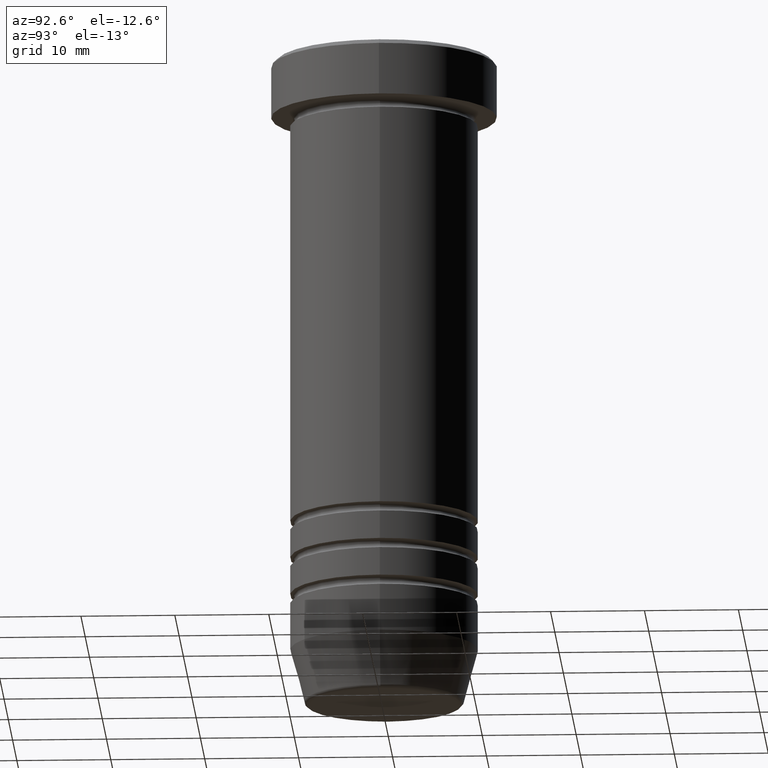
[diagram: clean part render]
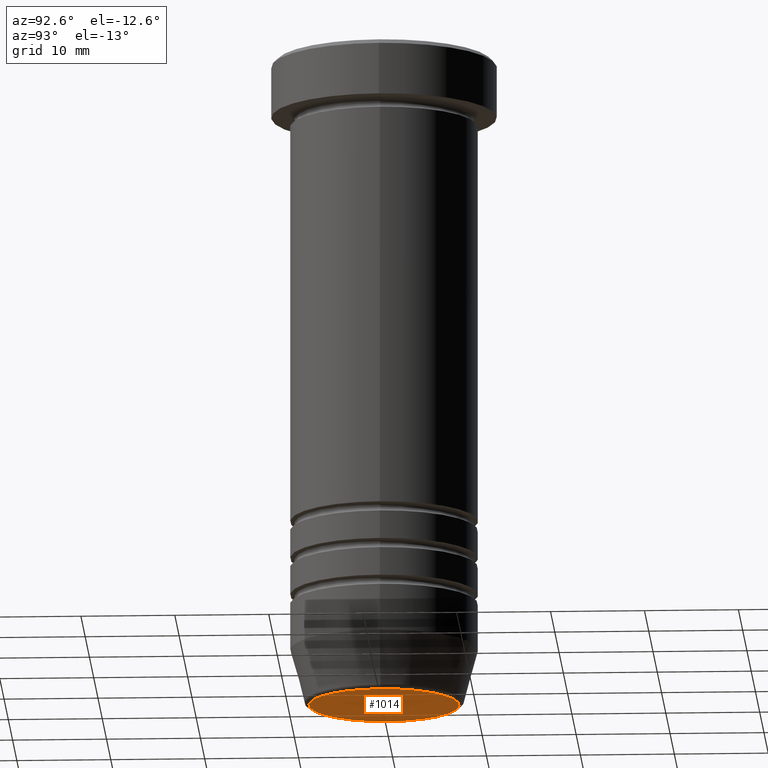
[diagram: same view with one face highlighted and labeled with its STEP entity id]
A machine part, auxiliary view. The second image highlights one B-rep face of the part: STEP entity #1014.
In plain terms, the highlighted planar face has unit normal (0, -0, 1).
Its self-contained STEP definition (entity closure, byte-faithful):
#6 = DIRECTION ( 'NONE',  ( 1.000000000000000000, 0.000000000000000000, 0.000000000000000000 ) ) ;
#91 = DIRECTION ( 'NONE',  ( 1.000000000000000000, 0.000000000000000000, 0.000000000000000000 ) ) ;
#198 = EDGE_CURVE ( 'NONE', #717, #979, #327, .T. ) ;
#327 = CIRCLE ( 'NONE', #694, 8.008641351423776200 ) ;
#374 = CIRCLE ( 'NONE', #444, 8.008641351423776200 ) ;
#381 = CARTESIAN_POINT ( 'NONE',  ( 8.008641351423776200, 0.000000000000000000, -70.00000000000000000 ) ) ;
#410 = DIRECTION ( 'NONE',  ( 0.000000000000000000, 0.000000000000000000, -1.000000000000000000 ) ) ;
#444 = AXIS2_PLACEMENT_3D ( 'NONE', #587, #410, #91 ) ;
#445 = ORIENTED_EDGE ( 'NONE', *, *, #198, .T. ) ;
#464 = FACE_OUTER_BOUND ( 'NONE', #809, .T. ) ;
#472 = AXIS2_PLACEMENT_3D ( 'NONE', #693, #951, #6 ) ;
#559 = DIRECTION ( 'NONE',  ( 1.000000000000000000, 0.000000000000000000, 0.000000000000000000 ) ) ;
#587 = CARTESIAN_POINT ( 'NONE',  ( 0.000000000000000000, 0.000000000000000000, -70.00000000000000000 ) ) ;
#685 = EDGE_CURVE ( 'NONE', #979, #717, #374, .T. ) ;
#693 = CARTESIAN_POINT ( 'NONE',  ( 0.000000000000000000, 2.449293598294707302E-15, -70.00000000000000000 ) ) ;
#694 = AXIS2_PLACEMENT_3D ( 'NONE', #886, #733, #559 ) ;
#717 = VERTEX_POINT ( 'NONE', #760 ) ;
#733 = DIRECTION ( 'NONE',  ( 0.000000000000000000, 0.000000000000000000, -1.000000000000000000 ) ) ;
#760 = CARTESIAN_POINT ( 'NONE',  ( -8.008641351423776200, 1.010348648938492975E-15, -70.00000000000000000 ) ) ;
#809 = EDGE_LOOP ( 'NONE', ( #1008, #445 ) ) ;
#886 = CARTESIAN_POINT ( 'NONE',  ( 0.000000000000000000, 0.000000000000000000, -70.00000000000000000 ) ) ;
#951 = DIRECTION ( 'NONE',  ( 0.000000000000000000, -0.000000000000000000, 1.000000000000000000 ) ) ;
#979 = VERTEX_POINT ( 'NONE', #381 ) ;
#1008 = ORIENTED_EDGE ( 'NONE', *, *, #685, .T. ) ;
#1014 = ADVANCED_FACE ( 'NONE', ( #464 ), #1036, .F. ) ;
#1036 = PLANE ( 'NONE',  #472 ) ;